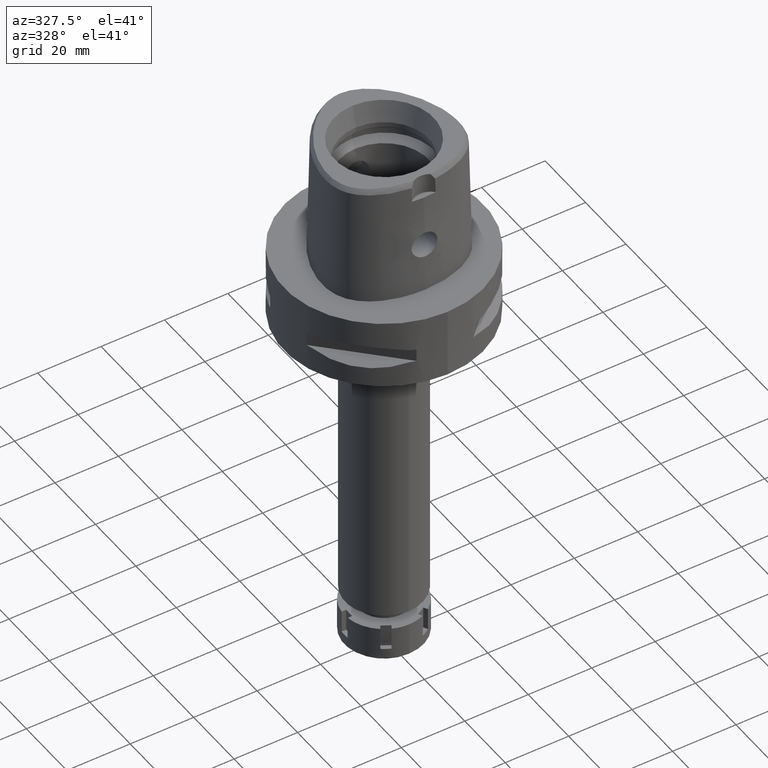
[diagram: clean part render]
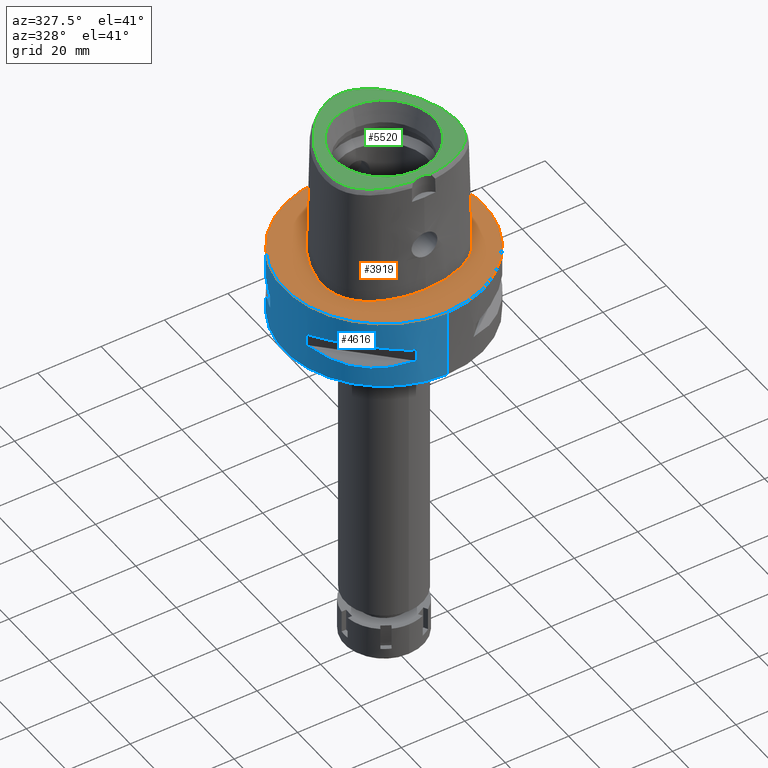
[diagram: same view with three faces highlighted in distinct colors, each labeled with its STEP entity id]
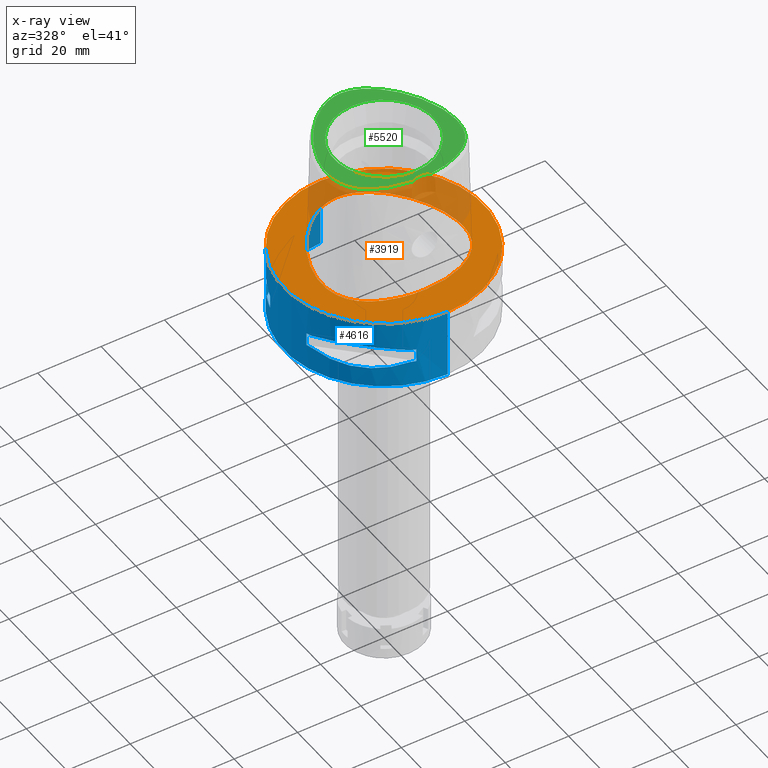
[diagram: x-ray of the same camera — body ghosted, the three highlighted faces saturated]
A machine part, auxiliary view with three faces highlighted in distinct colors.
The next image is the same camera in x-ray (body ghosted, the three faces saturated) — at least one of them is partly hidden behind the body in this view.
Their STEP definitions:

[orange] entity #3919 — the highlighted planar face has unit normal (0, 0, -1).
#27 = EDGE_CURVE ( 'NONE', #5125, #4345, #4020, .T. ) ;
#257 = CARTESIAN_POINT ( 'NONE',  ( -16.95889172186775085, -15.67838866670421361, 2.619346360361977932E-07 ) ) ;
#334 = CARTESIAN_POINT ( 'NONE',  ( 0.0000000000000000000, 31.50000000000000000, 1.065814103639999922E-14 ) ) ;
#368 = CARTESIAN_POINT ( 'NONE',  ( -0.8548392418397517956, 23.47499999345155075, 2.619351224693407064E-07 ) ) ;
#371 = CARTESIAN_POINT ( 'NONE',  ( 21.55524830731474850, -8.996025404659643954, -1.963522184688509808E-06 ) ) ;
#749 = CARTESIAN_POINT ( 'NONE',  ( 19.64947369841126346, -12.82525393515793333, -1.963522184688509808E-06 ) ) ;
#792 = FACE_OUTER_BOUND ( 'NONE', #1821, .T. ) ;
#843 = DIRECTION ( 'NONE',  ( 0.0000000000000000000, 0.0000000000000000000, -1.000000000000000000 ) ) ;
#971 = CARTESIAN_POINT ( 'NONE',  ( 0.0000000000000000000, 1.303636517692000002E-14, 1.065814103639999922E-14 ) ) ;
#1023 = DIRECTION ( 'NONE',  ( 0.0000000000000000000, 1.000000000000000000, 0.0000000000000000000 ) ) ;
#1029 = DIRECTION ( 'NONE',  ( 0.0000000000000000000, -1.000000000000000000, 0.0000000000000000000 ) ) ;
#1173 = CARTESIAN_POINT ( 'NONE',  ( 0.0000000000000000000, -31.50000000000000000, 1.065814103639999922E-14 ) ) ;
#1186 = CARTESIAN_POINT ( 'NONE',  ( -11.23259756502196005, -18.89324218131637068, 2.619346360361977932E-07 ) ) ;
#1221 = CARTESIAN_POINT ( 'NONE',  ( -7.571159431033696485, 21.31457030682647869, 2.619346360361977932E-07 ) ) ;
#1225 = CARTESIAN_POINT ( 'NONE',  ( 4.563147168621999314E-11, 23.47499999999000053, 5.514107688971999147E-14 ) ) ;
#1248 = CARTESIAN_POINT ( 'NONE',  ( -2.113823672675716914, -20.67499999345193373, 2.619346644252395981E-07 ) ) ;
#1477 = EDGE_LOOP ( 'NONE', ( #3207, #1510 ) ) ;
#1510 = ORIENTED_EDGE ( 'NONE', *, *, #4534, .F. ) ;
#1511 = DIRECTION ( 'NONE',  ( 0.0000000000000000000, 0.0000000000000000000, -1.000000000000000000 ) ) ;
#1585 = CARTESIAN_POINT ( 'NONE',  ( 4.563147168621999314E-11, 23.47499999999000053, 5.514107688971999147E-14 ) ) ;
#1591 = CARTESIAN_POINT ( 'NONE',  ( 18.56841068717591980, -14.16937991668258690, -1.963522184688509808E-06 ) ) ;
#1620 = CARTESIAN_POINT ( 'NONE',  ( 5.098437035606048440, 22.52602543639297039, -1.963522184688509808E-06 ) ) ;
#1644 = CARTESIAN_POINT ( 'NONE',  ( -10.74572890635932865, 19.17433593245471002, 2.619346360361977932E-07 ) ) ;
#1680 = FACE_BOUND ( 'NONE', #1477, .T. ) ;
#1821 = EDGE_LOOP ( 'NONE', ( #5075, #2772 ) ) ;
#1841 = CARTESIAN_POINT ( 'NONE',  ( -7.554102645100000769E-12, -20.67499999999999716, 5.806466418789999109E-14 ) ) ;
#1846 = CARTESIAN_POINT ( 'NONE',  ( 0.0000000000000000000, 1.303636517692000002E-14, 1.065814103639999922E-14 ) ) ;
#1922 = EDGE_CURVE ( 'NONE', #2988, #2382, #5254, .T. ) ;
#1987 = CARTESIAN_POINT ( 'NONE',  ( 2.113823675985067929, -20.67500004908262667, -1.963522184688509808E-06 ) ) ;
#2002 = CARTESIAN_POINT ( 'NONE',  ( -14.40795638455321814, 15.64093749575016012, 2.619351909850797799E-07 ) ) ;
#2040 = CARTESIAN_POINT ( 'NONE',  ( 0.8548392457866432759, 23.47500004909111837, -1.963522184688509808E-06 ) ) ;
#2064 = CARTESIAN_POINT ( 'NONE',  ( -20.74942740259727714, 4.657187497767338868, 2.619351909850797799E-07 ) ) ;
#2087 = CARTESIAN_POINT ( 'NONE',  ( -18.06826687956963795, 10.43171874671655885, 2.619346360361977932E-07 ) ) ;
#2090 = CARTESIAN_POINT ( 'NONE',  ( 22.24453912778353626, -4.100468749711118299, -1.963522184688509808E-06 ) ) ;
#2382 = VERTEX_POINT ( 'NONE', #1173 ) ;
#2419 = CARTESIAN_POINT ( 'NONE',  ( 11.23259758414317133, -18.89324223388144830, -1.963522184688509808E-06 ) ) ;
#2489 = CIRCLE ( 'NONE', #4103, 31.50000000000000000 ) ;
#2502 = CARTESIAN_POINT ( 'NONE',  ( 21.97832652646888008, -0.2810937414120965316, -1.963522184688509808E-06 ) ) ;
#2525 = CARTESIAN_POINT ( 'NONE',  ( -5.098437014838742343, 22.52602538452507019, 2.619346360361977932E-07 ) ) ;
#2539 = PLANE ( 'NONE',  #3303 ) ;
#2698 = DIRECTION ( 'NONE',  ( 0.0000000000000000000, 0.0000000000000000000, -1.000000000000000000 ) ) ;
#2723 = B_SPLINE_CURVE_WITH_KNOTS ( 'NONE', 3,
 ( #5419, #1987, #5008, #2419, #2916, #4239, #1591, #749, #5445, #3369, #371, #4163, #2090, #2502, #3315, #4559, #3342, #5078, #3397, #1620, #4587, #2040, #1225 ),
 .UNSPECIFIED., .F., .F.,
 ( 4, 1, 1, 1, 1, 1, 1, 1, 1, 1, 1, 1, 1, 1, 1, 1, 1, 1, 1, 1, 4 ),
 ( 0.0000000000000000000, 0.08333333333339000559, 0.1666666666667000196, 0.2083333333333000081, 0.2500000000000000000, 0.2916666666666999919, 0.3125000000000000000, 0.3333333333333000081, 0.3541666666666000163, 0.3749999999998999689, 0.4166666666666000163, 0.4583333333332000326, 0.4999999999998999689, 0.5833333333331000015, 0.6666666666664999852, 0.7499999999998000488, 0.8333333333329999704, 0.8749999999997000177, 0.9166666666664000651, 0.9583333333329999704, 1.000000000000000000 ),
 .UNSPECIFIED. ) ;
#2772 = ORIENTED_EDGE ( 'NONE', *, *, #3365, .F. ) ;
#2863 = CARTESIAN_POINT ( 'NONE',  ( 4.563147168621999314E-11, 23.47499999999000053, 5.514107688971999147E-14 ) ) ;
#2889 = CARTESIAN_POINT ( 'NONE',  ( -19.64947365333437190, -12.82525390239508845, 2.619346360361977932E-07 ) ) ;
#2904 = DIRECTION ( 'NONE',  ( 0.0000000000000000000, -1.000000000000000000, 0.0000000000000000000 ) ) ;
#2916 = CARTESIAN_POINT ( 'NONE',  ( 14.67337966856409182, -17.21410160528747824, -1.963522184688509808E-06 ) ) ;
#2941 = CARTESIAN_POINT ( 'NONE',  ( -21.97832647138169904, -0.2810937511456854665, 2.619346360361977932E-07 ) ) ;
#2988 = VERTEX_POINT ( 'NONE', #334 ) ;
#3207 = ORIENTED_EDGE ( 'NONE', *, *, #27, .F. ) ;
#3303 = AXIS2_PLACEMENT_3D ( 'NONE', #5504, #843, #2904 ) ;
#3312 = CARTESIAN_POINT ( 'NONE',  ( -21.55524825379765730, -8.996025388752761032, 2.619346360361977932E-07 ) ) ;
#3315 = CARTESIAN_POINT ( 'NONE',  ( 20.74942745523498999, 4.657187516736188471, -1.963522184688509808E-06 ) ) ;
#3342 = CARTESIAN_POINT ( 'NONE',  ( 14.40795642729540660, 15.64093753185202829, -1.963522184688509808E-06 ) ) ;
#3365 = EDGE_CURVE ( 'NONE', #2382, #2988, #2489, .T. ) ;
#3369 = CARTESIAN_POINT ( 'NONE',  ( 20.93173256703953555, -10.60431642623863446, -1.963522184688509808E-06 ) ) ;
#3394 = CARTESIAN_POINT ( 'NONE',  ( -22.24453907198324742, -4.100468750038055887, 2.619351909850797799E-07 ) ) ;
#3397 = CARTESIAN_POINT ( 'NONE',  ( 7.571159459220138999, 21.31457035499155950, -1.963522184688509808E-06 ) ) ;
#3807 = CARTESIAN_POINT ( 'NONE',  ( -20.34961797988879795, -11.74885741858964217, 2.619346360361977932E-07 ) ) ;
#3919 = ADVANCED_FACE ( 'NONE', ( #792, #1680 ), #2539, .F. ) ;
#4020 = B_SPLINE_CURVE_WITH_KNOTS ( 'NONE', 3,
 ( #2863, #368, #5466, #2525, #1221, #1644, #2002, #2087, #2064, #2941, #3394, #5100, #3312, #4160, #3807, #2889, #5439, #257, #5519, #1186, #4666, #1248, #4182 ),
 .UNSPECIFIED., .F., .F.,
 ( 4, 1, 1, 1, 1, 1, 1, 1, 1, 1, 1, 1, 1, 1, 1, 1, 1, 1, 1, 1, 4 ),
 ( 0.0000000000000000000, 0.04166666666736999758, 0.08333333333399001175, 0.1250000000005999923, 0.1666666666673000119, 0.2500000000004999889, 0.3333333333337000215, 0.4166666666670000296, 0.5000000000002999823, 0.5416666666668999985, 0.5833333333335000148, 0.6250000000001000311, 0.6458333333333999837, 0.6666666666667999674, 0.6875000000001000311, 0.7083333333333000637, 0.7500000000000000000, 0.7916666666667000474, 0.8333333333332000326, 0.9166666666664999852, 1.000000000000000000 ),
 .UNSPECIFIED. ) ;
#4103 = AXIS2_PLACEMENT_3D ( 'NONE', #1846, #1511, #1029 ) ;
#4160 = CARTESIAN_POINT ( 'NONE',  ( -20.93173251612003938, -10.60431640359096761, 2.619346360361977932E-07 ) ) ;
#4163 = CARTESIAN_POINT ( 'NONE',  ( 22.05732879202109231, -6.847636725762455967, -1.963522184688509808E-06 ) ) ;
#4182 = CARTESIAN_POINT ( 'NONE',  ( -7.554102645100000769E-12, -20.67499999999999716, 5.806466418789999109E-14 ) ) ;
#4239 = CARTESIAN_POINT ( 'NONE',  ( 16.95889175640957802, -15.67838871063158201, -1.963522184688509808E-06 ) ) ;
#4345 = VERTEX_POINT ( 'NONE', #1841 ) ;
#4534 = EDGE_CURVE ( 'NONE', #4345, #5125, #2723, .T. ) ;
#4559 = CARTESIAN_POINT ( 'NONE',  ( 18.06826692799056744, 10.43171877467559128, -1.963522184688509808E-06 ) ) ;
#4587 = CARTESIAN_POINT ( 'NONE',  ( 2.564517737045855839, 23.29328129833609751, -1.963522184688509808E-06 ) ) ;
#4666 = CARTESIAN_POINT ( 'NONE',  ( -6.341471018048058461, -20.29812499352228983, 2.619351909850797799E-07 ) ) ;
#4898 = AXIS2_PLACEMENT_3D ( 'NONE', #971, #2698, #1023 ) ;
#5008 = CARTESIAN_POINT ( 'NONE',  ( 6.341471027934107774, -20.29812504859152966, -1.963522184688509808E-06 ) ) ;
#5075 = ORIENTED_EDGE ( 'NONE', *, *, #1922, .F. ) ;
#5078 = CARTESIAN_POINT ( 'NONE',  ( 10.74572894232482057, 19.17433597529923972, -1.963522184688509808E-06 ) ) ;
#5100 = CARTESIAN_POINT ( 'NONE',  ( -22.05732873671569649, -6.847636717813841756, 2.619346360361977932E-07 ) ) ;
#5125 = VERTEX_POINT ( 'NONE', #1585 ) ;
#5254 = CIRCLE ( 'NONE', #4898, 31.50000000000000000 ) ;
#5419 = CARTESIAN_POINT ( 'NONE',  ( -7.554102645100000769E-12, -20.67499999999999716, 5.806466418789999109E-14 ) ) ;
#5439 = CARTESIAN_POINT ( 'NONE',  ( -18.56841064664882524, -14.16937987829893331, 2.619346360361977932E-07 ) ) ;
#5445 = CARTESIAN_POINT ( 'NONE',  ( 20.34961802815782406, -11.74885744646087282, -1.963522184688509808E-06 ) ) ;
#5466 = CARTESIAN_POINT ( 'NONE',  ( -2.564517725611348720, 23.29328124354946183, 2.619346360361977932E-07 ) ) ;
#5504 = CARTESIAN_POINT ( 'NONE',  ( 0.0000000000000000000, 1.224646799146999965E-14, 0.0000000000000000000 ) ) ;
#5519 = CARTESIAN_POINT ( 'NONE',  ( -14.67337964094917169, -17.21410155678861997, 2.619346360361977932E-07 ) ) ;

[blue] entity #4616 — the highlighted cylindrical surface (partial cylindrical patch) has radius 31.5 mm, axis along (0, 0, -1).
#14 = VERTEX_POINT ( 'NONE', #1164 ) ;
#38 = ORIENTED_EDGE ( 'NONE', *, *, #3365, .T. ) ;
#41 = AXIS2_PLACEMENT_3D ( 'NONE', #2274, #3129, #496 ) ;
#51 = CIRCLE ( 'NONE', #2298, 31.50000000000001776 ) ;
#199 = ORIENTED_EDGE ( 'NONE', *, *, #2994, .T. ) ;
#233 = B_SPLINE_CURVE_WITH_KNOTS ( 'NONE', 3,
 ( #1857, #556, #2686, #1349, #1405, #445, #3554, #3474, #5265, #3107, #3993, #2630, #2254, #3528, #505, #3968, #2602, #470, #4339, #4315, #2169, #3914, #1324, #4844 ),
 .UNSPECIFIED., .F., .F.,
 ( 4, 1, 1, 1, 1, 1, 2, 2, 2, 1, 1, 1, 1, 1, 2, 2, 4 ),
 ( 0.0000000000000000000, 0.1250000000000055511, 0.1875000000000083267, 0.2187500000000097977, 0.2343750000000106304, 0.2421875000000108247, 0.2460937500000108524, 0.2500000000000108802, 0.5000000000000087708, 0.6250000000000075495, 0.6875000000000071054, 0.7187500000000067724, 0.7343750000000066613, 0.7421875000000065503, 0.7460937500000062172, 0.7500000000000059952, 1.000000000000000000 ),
 .UNSPECIFIED. ) ;
#241 = CARTESIAN_POINT ( 'NONE',  ( 0.0000000000000000000, 1.303636517692000002E-14, -14.05000000000000071 ) ) ;
#272 = DIRECTION ( 'NONE',  ( 0.0000000000000000000, 0.0000000000000000000, -1.000000000000000000 ) ) ;
#282 = CARTESIAN_POINT ( 'NONE',  ( -20.64154884328072370, 23.90617837147178193, -8.160627831309673397 ) ) ;
#290 = ORIENTED_EDGE ( 'NONE', *, *, #5357, .T. ) ;
#322 = CARTESIAN_POINT ( 'NONE',  ( -8.981198972017999438, 30.19251670572000279, -9.950000000000001066 ) ) ;
#334 = CARTESIAN_POINT ( 'NONE',  ( 0.0000000000000000000, 31.50000000000000000, 1.065814103639999922E-14 ) ) ;
#348 = DIRECTION ( 'NONE',  ( 0.0000000000000000000, -1.000000000000000000, 0.0000000000000000000 ) ) ;
#351 = CARTESIAN_POINT ( 'NONE',  ( -23.08532645888017854, 21.46242677077873751, -15.83938991065184076 ) ) ;
#374 = CARTESIAN_POINT ( 'NONE',  ( -29.71690375017999841, 10.44775724750000023, -14.05000000000000071 ) ) ;
#400 = VECTOR ( 'NONE', #426, 1000.000000000000000 ) ;
#426 = DIRECTION ( 'NONE',  ( 0.0000000000000000000, 0.0000000000000000000, 1.000000000000000000 ) ) ;
#445 = CARTESIAN_POINT ( 'NONE',  ( -26.84474411198783628, -16.48208282228858224, -15.34094883777952667 ) ) ;
#461 = DIRECTION ( 'NONE',  ( 0.0000000000000000000, 0.0000000000000000000, 1.000000000000000000 ) ) ;
#470 = CARTESIAN_POINT ( 'NONE',  ( -17.14106442934810204, -26.42800887047570058, -15.43984550238532982 ) ) ;
#482 = CARTESIAN_POINT ( 'NONE',  ( -25.37277178159835955, -18.81455742174598456, -8.309746333092055792 ) ) ;
#496 = DIRECTION ( 'NONE',  ( -0.9584925938322735872, -0.2851174276831918153, 0.0000000000000000000 ) ) ;
#505 = CARTESIAN_POINT ( 'NONE',  ( -18.59229662065495958, -25.43927894891979946, -15.62866126334684580 ) ) ;
#512 = CARTESIAN_POINT ( 'NONE',  ( -29.71690375017999841, -10.44775724750000023, -9.949999999998999201 ) ) ;
#516 = DIRECTION ( 'NONE',  ( -0.3316748332540863653, 0.9433937698468619626, 0.0000000000000000000 ) ) ;
#534 = VERTEX_POINT ( 'NONE', #2543 ) ;
#543 = CARTESIAN_POINT ( 'NONE',  ( -30.19251670572000279, -8.981198972017999438, -14.05000000000000071 ) ) ;
#556 = CARTESIAN_POINT ( 'NONE',  ( -29.31542262584746794, -11.58970337494326941, -14.35229357166913999 ) ) ;
#567 = VERTEX_POINT ( 'NONE', #1766 ) ;
#647 = EDGE_CURVE ( 'NONE', #3327, #3419, #4347, .T. ) ;
#668 = VERTEX_POINT ( 'NONE', #2482 ) ;
#676 = AXIS2_PLACEMENT_3D ( 'NONE', #3326, #1175, #5059 ) ;
#725 = EDGE_CURVE ( 'NONE', #5213, #1923, #2915, .T. ) ;
#776 = AXIS2_PLACEMENT_3D ( 'NONE', #5102, #1252, #348 ) ;
#788 = EDGE_CURVE ( 'NONE', #3327, #2240, #1729, .T. ) ;
#790 = DIRECTION ( 'NONE',  ( -0.9584925938322735872, 0.2851174276831918153, 0.0000000000000000000 ) ) ;
#808 = ORIENTED_EDGE ( 'NONE', *, *, #2056, .T. ) ;
#809 = FACE_BOUND ( 'NONE', #4158, .T. ) ;
#816 = CARTESIAN_POINT ( 'NONE',  ( 0.0000000000000000000, -31.50000000000000000, 0.0000000000000000000 ) ) ;
#834 = CARTESIAN_POINT ( 'NONE',  ( -26.48642424310458665, 17.05047092244234008, -15.42670883407647509 ) ) ;
#855 = LINE ( 'NONE', #2585, #400 ) ;
#871 = EDGE_CURVE ( 'NONE', #2382, #1919, #2622, .T. ) ;
#877 = CARTESIAN_POINT ( 'NONE',  ( -10.44775724750000023, 29.71690375017999841, -9.949999999998999201 ) ) ;
#889 = CARTESIAN_POINT ( 'NONE',  ( -16.86571563436579169, 26.60451452154777030, -15.39949295785988426 ) ) ;
#897 = DIRECTION ( 'NONE',  ( 0.0000000000000000000, 0.0000000000000000000, 1.000000000000000000 ) ) ;
#914 = CARTESIAN_POINT ( 'NONE',  ( 0.0000000000000000000, 1.303636517692000002E-14, -14.05000000000000071 ) ) ;
#939 = CARTESIAN_POINT ( 'NONE',  ( -14.84430321566181910, -27.88210502990660444, -8.906184732002364157 ) ) ;
#966 = ORIENTED_EDGE ( 'NONE', *, *, #725, .T. ) ;
#1021 = ORIENTED_EDGE ( 'NONE', *, *, #1618, .F. ) ;
#1029 = DIRECTION ( 'NONE',  ( 0.0000000000000000000, -1.000000000000000000, 0.0000000000000000000 ) ) ;
#1040 = CARTESIAN_POINT ( 'NONE',  ( -10.44775724750000023, -29.71690375017999841, -9.949999999998999201 ) ) ;
#1057 = B_SPLINE_CURVE_WITH_KNOTS ( 'NONE', 3,
 ( #1554, #3256, #2523, #5021, #282, #4179, #5437, #3336, #4549, #3281 ),
 .UNSPECIFIED., .F., .F.,
 ( 4, 2, 2, 2, 4 ),
 ( 0.0000000000000000000, 0.2500000000000000000, 0.5000000000000000000, 0.7500000000000000000, 1.000000000000000000 ),
 .UNSPECIFIED. ) ;
#1100 = DIRECTION ( 'NONE',  ( 0.0000000000000000000, 1.000000000000000000, 0.0000000000000000000 ) ) ;
#1137 = CARTESIAN_POINT ( 'NONE',  ( -29.71690375017999841, -10.44775724750000023, -14.05000000000000071 ) ) ;
#1164 = CARTESIAN_POINT ( 'NONE',  ( -10.44775724750000023, 29.71690375017999841, -14.05000000000000071 ) ) ;
#1173 = CARTESIAN_POINT ( 'NONE',  ( 0.0000000000000000000, -31.50000000000000000, 1.065814103639999922E-14 ) ) ;
#1175 = DIRECTION ( 'NONE',  ( 0.0000000000000000000, 0.0000000000000000000, 1.000000000000000000 ) ) ;
#1190 = FACE_BOUND ( 'NONE', #4772, .T. ) ;
#1195 = CARTESIAN_POINT ( 'NONE',  ( -26.42800887047508240, 17.14106442934706820, -15.43984550238465836 ) ) ;
#1198 = VECTOR ( 'NONE', #461, 1000.000000000000000 ) ;
#1224 = ORIENTED_EDGE ( 'NONE', *, *, #2548, .F. ) ;
#1228 = CARTESIAN_POINT ( 'NONE',  ( -24.23018836745279714, 20.18579225685798306, -15.78559396978850415 ) ) ;
#1252 = DIRECTION ( 'NONE',  ( 0.0000000000000000000, 0.0000000000000000000, -1.000000000000000000 ) ) ;
#1273 = ORIENTED_EDGE ( 'NONE', *, *, #2268, .F. ) ;
#1304 = ORIENTED_EDGE ( 'NONE', *, *, #4813, .T. ) ;
#1307 = CARTESIAN_POINT ( 'NONE',  ( -11.58970337493613378, 29.31542262584994418, -14.35229357166721265 ) ) ;
#1324 = CARTESIAN_POINT ( 'NONE',  ( -12.73197616784617381, -28.91382665370159799, -14.65467361752943809 ) ) ;
#1349 = CARTESIAN_POINT ( 'NONE',  ( -27.64634172018421410, -15.11986997309601577, -15.11207862403482238 ) ) ;
#1385 = ORIENTED_EDGE ( 'NONE', *, *, #1771, .T. ) ;
#1399 = AXIS2_PLACEMENT_3D ( 'NONE', #3418, #5517, #1666 ) ;
#1405 = CARTESIAN_POINT ( 'NONE',  ( -27.11872488589304453, -16.03138450078185429, -15.26880420107623237 ) ) ;
#1434 = DIRECTION ( 'NONE',  ( 0.0000000000000000000, 0.0000000000000000000, -1.000000000000000000 ) ) ;
#1441 = B_SPLINE_CURVE_WITH_KNOTS ( 'NONE', 3,
 ( #512, #3535, #2237, #482, #3032, #4799, #3840, #939, #5132, #1781 ),
 .UNSPECIFIED., .F., .F.,
 ( 4, 2, 2, 2, 4 ),
 ( 0.0000000000000000000, 0.2500000000000000000, 0.5000000000000000000, 0.7500000000000000000, 1.000000000000000000 ),
 .UNSPECIFIED. ) ;
#1479 = CIRCLE ( 'NONE', #41, 31.50000000000001776 ) ;
#1503 = ORIENTED_EDGE ( 'NONE', *, *, #647, .T. ) ;
#1507 = VERTEX_POINT ( 'NONE', #5558 ) ;
#1511 = DIRECTION ( 'NONE',  ( 0.0000000000000000000, 0.0000000000000000000, -1.000000000000000000 ) ) ;
#1541 = CARTESIAN_POINT ( 'NONE',  ( -8.981198972019999616, -30.19251670572000279, -14.05000000000000071 ) ) ;
#1554 = CARTESIAN_POINT ( 'NONE',  ( -10.44775724750000023, 29.71690375017999841, -9.949999999998999201 ) ) ;
#1576 = AXIS2_PLACEMENT_3D ( 'NONE', #4231, #2081, #1100 ) ;
#1593 = VERTEX_POINT ( 'NONE', #4218 ) ;
#1618 = EDGE_CURVE ( 'NONE', #14, #3419, #3309, .T. ) ;
#1629 = VERTEX_POINT ( 'NONE', #2977 ) ;
#1666 = DIRECTION ( 'NONE',  ( -0.9433937698468619626, 0.3316748332540863653, 0.0000000000000000000 ) ) ;
#1671 = CYLINDRICAL_SURFACE ( 'NONE', #776, 31.50000000000000000 ) ;
#1673 = CARTESIAN_POINT ( 'NONE',  ( -15.11986997308662595, 27.64634172018752523, -15.11207862403231239 ) ) ;
#1705 = CARTESIAN_POINT ( 'NONE',  ( 0.0000000000000000000, 1.303636517692000002E-14, -9.950000000000001066 ) ) ;
#1729 = LINE ( 'NONE', #2648, #1198 ) ;
#1734 = AXIS2_PLACEMENT_3D ( 'NONE', #241, #272, #790 ) ;
#1755 = CARTESIAN_POINT ( 'NONE',  ( -16.70616724745637072, 26.70521063584585164, -15.37546661817639126 ) ) ;
#1766 = CARTESIAN_POINT ( 'NONE',  ( 0.0000000000000000000, 31.50000000000000000, -22.00000000000000000 ) ) ;
#1770 = ORIENTED_EDGE ( 'NONE', *, *, #3784, .F. ) ;
#1771 = EDGE_CURVE ( 'NONE', #14, #1629, #2288, .T. ) ;
#1781 = CARTESIAN_POINT ( 'NONE',  ( -10.44775724750000023, -29.71690375017999841, -9.949999999998999201 ) ) ;
#1812 = ORIENTED_EDGE ( 'NONE', *, *, #4611, .T. ) ;
#1832 = ORIENTED_EDGE ( 'NONE', *, *, #5420, .T. ) ;
#1846 = CARTESIAN_POINT ( 'NONE',  ( 0.0000000000000000000, 1.303636517692000002E-14, 1.065814103639999922E-14 ) ) ;
#1857 = CARTESIAN_POINT ( 'NONE',  ( -29.71690375017999841, -10.44775724750000023, -14.05000000000000071 ) ) ;
#1909 = VECTOR ( 'NONE', #4758, 1000.000000000000000 ) ;
#1919 = VERTEX_POINT ( 'NONE', #3517 ) ;
#1923 = VERTEX_POINT ( 'NONE', #543 ) ;
#1931 = VECTOR ( 'NONE', #1434, 1000.000000000000000 ) ;
#1989 = DIRECTION ( 'NONE',  ( -0.9433937698468619626, -0.3316748332540863653, 0.0000000000000000000 ) ) ;
#2045 = LINE ( 'NONE', #322, #4270 ) ;
#2056 = EDGE_CURVE ( 'NONE', #3757, #668, #1479, .T. ) ;
#2070 = CARTESIAN_POINT ( 'NONE',  ( -26.29071741523646111, 17.35163608579689409, -15.46976201925398087 ) ) ;
#2081 = DIRECTION ( 'NONE',  ( 0.0000000000000000000, 0.0000000000000000000, 1.000000000000000000 ) ) ;
#2094 = CARTESIAN_POINT ( 'NONE',  ( -20.65093790435807364, 23.89673728056094859, -15.83935804902020550 ) ) ;
#2109 = CIRCLE ( 'NONE', #1576, 31.50000000000000000 ) ;
#2154 = CARTESIAN_POINT ( 'NONE',  ( -10.44775724750000023, 29.71690375017999841, -14.05000000000000071 ) ) ;
#2169 = CARTESIAN_POINT ( 'NONE',  ( -16.96123479564984748, -26.54368690921626950, -15.41365572341332424 ) ) ;
#2237 = CARTESIAN_POINT ( 'NONE',  ( -27.88214534463898175, -14.84422749211551640, -8.906206096462614852 ) ) ;
#2240 = VERTEX_POINT ( 'NONE', #3245 ) ;
#2254 = CARTESIAN_POINT ( 'NONE',  ( -21.46242677078364025, -23.08532645888299939, -15.83938991065501867 ) ) ;
#2268 = EDGE_CURVE ( 'NONE', #1507, #1629, #2045, .T. ) ;
#2274 = CARTESIAN_POINT ( 'NONE',  ( 0.0000000000000000000, 1.303636517692000002E-14, -9.950000000000001066 ) ) ;
#2288 = CIRCLE ( 'NONE', #4806, 31.50000000000000711 ) ;
#2298 = AXIS2_PLACEMENT_3D ( 'NONE', #4186, #5470, #5051 ) ;
#2314 = CARTESIAN_POINT ( 'NONE',  ( -30.19251670572000279, -8.981198972017999438, -9.950000000000001066 ) ) ;
#2325 = EDGE_LOOP ( 'NONE', ( #199, #3154, #38, #1832 ) ) ;
#2382 = VERTEX_POINT ( 'NONE', #1173 ) ;
#2482 = CARTESIAN_POINT ( 'NONE',  ( -29.71690375017999841, -10.44775724750000023, -9.949999999998999201 ) ) ;
#2489 = CIRCLE ( 'NONE', #4103, 31.50000000000000000 ) ;
#2505 = CARTESIAN_POINT ( 'NONE',  ( -28.91382665368626093, 12.73197616788979047, -14.65467361754097197 ) ) ;
#2511 = DIRECTION ( 'NONE',  ( 0.0000000000000000000, 0.0000000000000000000, -1.000000000000000000 ) ) ;
#2523 = CARTESIAN_POINT ( 'NONE',  ( -14.84422749199032943, 27.88214534470565198, -8.906206096497943037 ) ) ;
#2543 = CARTESIAN_POINT ( 'NONE',  ( -29.71690375017999841, 10.44775724750000023, -9.949999999998999201 ) ) ;
#2548 = EDGE_CURVE ( 'NONE', #3757, #1923, #2710, .T. ) ;
#2557 = CARTESIAN_POINT ( 'NONE',  ( -26.01217882834653139, 17.76952662671834915, -15.52665221626015501 ) ) ;
#2585 = CARTESIAN_POINT ( 'NONE',  ( -8.981198972017999438, -30.19251670572000279, -14.05000000000000071 ) ) ;
#2602 = CARTESIAN_POINT ( 'NONE',  ( -17.35163608579889072, -26.29071741523761929, -15.46976201925527761 ) ) ;
#2616 = CARTESIAN_POINT ( 'NONE',  ( -18.86897208073744991, 25.32725744467937545, -15.69588095933747240 ) ) ;
#2622 = LINE ( 'NONE', #816, #1909 ) ;
#2630 = CARTESIAN_POINT ( 'NONE',  ( -23.89673728055121416, -20.65093790435243193, -15.83935804901394739 ) ) ;
#2648 = CARTESIAN_POINT ( 'NONE',  ( -30.19251670572000279, 8.981198972017999438, -14.05000000000000071 ) ) ;
#2686 = CARTESIAN_POINT ( 'NONE',  ( -28.62019653468943048, -13.25636937903484203, -14.74888225541266884 ) ) ;
#2710 = LINE ( 'NONE', #2314, #1931 ) ;
#2719 = VERTEX_POINT ( 'NONE', #1040 ) ;
#2915 = CIRCLE ( 'NONE', #3808, 31.50000000000000711 ) ;
#2920 = CARTESIAN_POINT ( 'NONE',  ( -26.52527364208584615, 16.98999780422065342, -15.41788098766309467 ) ) ;
#2969 = DIRECTION ( 'NONE',  ( 0.0000000000000000000, 0.0000000000000000000, -1.000000000000000000 ) ) ;
#2977 = CARTESIAN_POINT ( 'NONE',  ( -8.981198972017999438, 30.19251670572000279, -14.05000000000000071 ) ) ;
#2988 = VERTEX_POINT ( 'NONE', #334 ) ;
#2994 = EDGE_CURVE ( 'NONE', #567, #1919, #2109, .T. ) ;
#3032 = CARTESIAN_POINT ( 'NONE',  ( -23.90617837153842729, -20.64154884321405703, -8.160627831286120681 ) ) ;
#3075 = ORIENTED_EDGE ( 'NONE', *, *, #4472, .T. ) ;
#3107 = CARTESIAN_POINT ( 'NONE',  ( -26.58330558444411906, -16.89910283486596754, -15.40446471307235754 ) ) ;
#3129 = DIRECTION ( 'NONE',  ( 0.0000000000000000000, 0.0000000000000000000, 1.000000000000000000 ) ) ;
#3154 = ORIENTED_EDGE ( 'NONE', *, *, #871, .F. ) ;
#3216 = AXIS2_PLACEMENT_3D ( 'NONE', #1705, #897, #5176 ) ;
#3245 = CARTESIAN_POINT ( 'NONE',  ( -30.19251670572000279, 8.981198972017999438, -9.950000000000001066 ) ) ;
#3256 = CARTESIAN_POINT ( 'NONE',  ( -12.70092055730904868, 28.92474506844683901, -9.353547358226721897 ) ) ;
#3281 = CARTESIAN_POINT ( 'NONE',  ( -29.71690375017999841, 10.44775724750000023, -9.949999999998999201 ) ) ;
#3309 = B_SPLINE_CURVE_WITH_KNOTS ( 'NONE', 3,
 ( #2154, #1307, #5136, #1673, #5164, #4751, #1755, #5496, #889, #3488, #2616, #2094, #351, #1228, #3897, #2557, #2070, #1195, #834, #2920, #5106, #3871, #2505, #374 ),
 .UNSPECIFIED., .F., .F.,
 ( 4, 1, 1, 1, 1, 1, 2, 2, 2, 1, 1, 1, 1, 1, 2, 2, 4 ),
 ( 0.0000000000000000000, 0.1249999999999950040, 0.1874999999999924505, 0.2187499999999911737, 0.2343749999999902855, 0.2421874999999899802, 0.2460937499999900080, 0.2499999999999900080, 0.4999999999999917843, 0.6249999999999925615, 0.6874999999999925615, 0.7187499999999924505, 0.7343749999999926725, 0.7421874999999927836, 0.7460937499999928946, 0.7499999999999931166, 1.000000000000000000 ),
 .UNSPECIFIED. ) ;
#3326 = CARTESIAN_POINT ( 'NONE',  ( 0.0000000000000000000, 1.303636517692000002E-14, -9.950000000000001066 ) ) ;
#3327 = VERTEX_POINT ( 'NONE', #4527 ) ;
#3336 = CARTESIAN_POINT ( 'NONE',  ( -27.88210502983995553, 14.84430321578704515, -8.906184731967034196 ) ) ;
#3365 = EDGE_CURVE ( 'NONE', #2382, #2988, #2489, .T. ) ;
#3386 = VECTOR ( 'NONE', #2969, 1000.000000000000000 ) ;
#3412 = ORIENTED_EDGE ( 'NONE', *, *, #5199, .T. ) ;
#3418 = CARTESIAN_POINT ( 'NONE',  ( 0.0000000000000000000, 1.303636517692000002E-14, -9.950000000000001066 ) ) ;
#3419 = VERTEX_POINT ( 'NONE', #4863 ) ;
#3474 = CARTESIAN_POINT ( 'NONE',  ( -26.64486562695783789, -16.80193241490531975, -15.38992683735687272 ) ) ;
#3488 = CARTESIAN_POINT ( 'NONE',  ( -16.89910283486545950, 26.58330558444438907, -15.40446471307224030 ) ) ;
#3517 = CARTESIAN_POINT ( 'NONE',  ( 0.0000000000000000000, -31.50000000000000000, -22.00000000000000000 ) ) ;
#3528 = CARTESIAN_POINT ( 'NONE',  ( -20.18579225686653444, -24.23018836745773541, -15.78559396979401974 ) ) ;
#3535 = CARTESIAN_POINT ( 'NONE',  ( -28.92474506841556092, -12.70092055739798376, -9.353547358203169182 ) ) ;
#3554 = CARTESIAN_POINT ( 'NONE',  ( -26.70521063584532229, -16.70616724745790549, -15.37546661817682292 ) ) ;
#3757 = VERTEX_POINT ( 'NONE', #4739 ) ;
#3784 = EDGE_CURVE ( 'NONE', #5213, #1593, #233, .T. ) ;
#3808 = AXIS2_PLACEMENT_3D ( 'NONE', #4569, #2511, #1989 ) ;
#3829 = CIRCLE ( 'NONE', #1399, 31.50000000000000711 ) ;
#3840 = CARTESIAN_POINT ( 'NONE',  ( -18.81462633020657194, -25.37272068407227010, -8.309724968631808650 ) ) ;
#3871 = CARTESIAN_POINT ( 'NONE',  ( -27.86285265926284893, 14.89252659058025685, -15.10765629752004813 ) ) ;
#3895 = VERTEX_POINT ( 'NONE', #4678 ) ;
#3897 = CARTESIAN_POINT ( 'NONE',  ( -25.43927894891607622, 18.59229662064853983, -15.62866126334269623 ) ) ;
#3914 = CARTESIAN_POINT ( 'NONE',  ( -14.89252659053665440, -27.86285265927818600, -15.10765629750852135 ) ) ;
#3968 = CARTESIAN_POINT ( 'NONE',  ( -17.76952662672209371, -26.01217882834868433, -15.52665221626257264 ) ) ;
#3982 = EDGE_CURVE ( 'NONE', #1507, #5328, #4899, .T. ) ;
#3993 = CARTESIAN_POINT ( 'NONE',  ( -25.32725744469575702, -18.86897208070564247, -15.69588095933118943 ) ) ;
#4041 = ORIENTED_EDGE ( 'NONE', *, *, #788, .F. ) ;
#4078 = VERTEX_POINT ( 'NONE', #1541 ) ;
#4103 = AXIS2_PLACEMENT_3D ( 'NONE', #1846, #1511, #1029 ) ;
#4158 = EDGE_LOOP ( 'NONE', ( #3075, #4801, #1812, #1770, #966, #1224, #808, #1304 ) ) ;
#4179 = CARTESIAN_POINT ( 'NONE',  ( -23.90617837147178193, 20.64154884328073081, -8.160613588465007950 ) ) ;
#4186 = CARTESIAN_POINT ( 'NONE',  ( 0.0000000000000000000, 1.303636517692000002E-14, -14.05000000000000071 ) ) ;
#4194 = CIRCLE ( 'NONE', #676, 31.50000000000000711 ) ;
#4218 = CARTESIAN_POINT ( 'NONE',  ( -10.44775724750000023, -29.71690375017999841, -14.05000000000000071 ) ) ;
#4231 = CARTESIAN_POINT ( 'NONE',  ( 0.0000000000000000000, 1.303636517692000002E-14, -22.00000000000000000 ) ) ;
#4270 = VECTOR ( 'NONE', #4976, 1000.000000000000000 ) ;
#4315 = CARTESIAN_POINT ( 'NONE',  ( -16.98999780422095540, -26.52527364208602734, -15.41788098766330783 ) ) ;
#4339 = CARTESIAN_POINT ( 'NONE',  ( -17.05047092244293694, -26.48642424310493837, -15.42670883407686588 ) ) ;
#4347 = CIRCLE ( 'NONE', #1734, 31.50000000000001776 ) ;
#4472 = EDGE_CURVE ( 'NONE', #2719, #3895, #4194, .T. ) ;
#4527 = CARTESIAN_POINT ( 'NONE',  ( -30.19251670572000279, 8.981198972019999616, -14.05000000000000071 ) ) ;
#4549 = CARTESIAN_POINT ( 'NONE',  ( -28.92472615205409170, 12.70097436183467110, -9.353533115206117188 ) ) ;
#4569 = CARTESIAN_POINT ( 'NONE',  ( 0.0000000000000000000, 1.303636517692000002E-14, -14.05000000000000071 ) ) ;
#4611 = EDGE_CURVE ( 'NONE', #4078, #1593, #51, .T. ) ;
#4616 = ADVANCED_FACE ( 'NONE', ( #5524, #1190, #809 ), #1671, .T. ) ;
#4678 = CARTESIAN_POINT ( 'NONE',  ( -8.981198972017999438, -30.19251670572000279, -9.950000000000001066 ) ) ;
#4739 = CARTESIAN_POINT ( 'NONE',  ( -30.19251670572000279, -8.981198972019999616, -9.950000000000001066 ) ) ;
#4751 = CARTESIAN_POINT ( 'NONE',  ( -16.48208282228564769, 26.84474411198887012, -15.34094883777873619 ) ) ;
#4758 = DIRECTION ( 'NONE',  ( 0.0000000000000000000, 0.0000000000000000000, -1.000000000000000000 ) ) ;
#4772 = EDGE_LOOP ( 'NONE', ( #290, #4041, #1503, #1021, #1385, #1273, #5280, #3412 ) ) ;
#4787 = EDGE_CURVE ( 'NONE', #4078, #3895, #855, .T. ) ;
#4793 = CARTESIAN_POINT ( 'NONE',  ( 0.0000000000000000000, 31.50000000000000000, 0.0000000000000000000 ) ) ;
#4799 = CARTESIAN_POINT ( 'NONE',  ( -20.64154884321404637, -23.90617837153842729, -8.160613588488562442 ) ) ;
#4801 = ORIENTED_EDGE ( 'NONE', *, *, #4787, .F. ) ;
#4803 = DIRECTION ( 'NONE',  ( 0.0000000000000000000, 0.0000000000000000000, -1.000000000000000000 ) ) ;
#4806 = AXIS2_PLACEMENT_3D ( 'NONE', #914, #4803, #516 ) ;
#4813 = EDGE_CURVE ( 'NONE', #668, #2719, #1441, .T. ) ;
#4844 = CARTESIAN_POINT ( 'NONE',  ( -10.44775724750000023, -29.71690375017999841, -14.05000000000000071 ) ) ;
#4863 = CARTESIAN_POINT ( 'NONE',  ( -29.71690375017999841, 10.44775724750000023, -14.05000000000000071 ) ) ;
#4899 = CIRCLE ( 'NONE', #3216, 31.50000000000001776 ) ;
#4976 = DIRECTION ( 'NONE',  ( 0.0000000000000000000, 0.0000000000000000000, -1.000000000000000000 ) ) ;
#5021 = CARTESIAN_POINT ( 'NONE',  ( -18.81455742163205613, 25.37277178168287151, -8.309746333127383977 ) ) ;
#5051 = DIRECTION ( 'NONE',  ( -0.2851174276831918153, -0.9584925938322735872, 0.0000000000000000000 ) ) ;
#5059 = DIRECTION ( 'NONE',  ( -0.3316748332540863653, -0.9433937698468619626, 0.0000000000000000000 ) ) ;
#5102 = CARTESIAN_POINT ( 'NONE',  ( 0.0000000000000000000, 1.303636517692000002E-14, 6.450000000000000178 ) ) ;
#5106 = CARTESIAN_POINT ( 'NONE',  ( -26.54368690921649687, 16.96123479564916892, -15.41365572341313239 ) ) ;
#5132 = CARTESIAN_POINT ( 'NONE',  ( -12.70097436174568983, -28.92472615208535558, -9.353533115229668127 ) ) ;
#5136 = CARTESIAN_POINT ( 'NONE',  ( -13.25636937902232404, 28.62019653469382163, -14.74888225540932751 ) ) ;
#5164 = CARTESIAN_POINT ( 'NONE',  ( -16.03138450077636534, 27.11872488589498786, -15.26880420107476333 ) ) ;
#5176 = DIRECTION ( 'NONE',  ( -0.2851174276831918153, 0.9584925938322735872, 0.0000000000000000000 ) ) ;
#5199 = EDGE_CURVE ( 'NONE', #5328, #534, #1057, .T. ) ;
#5213 = VERTEX_POINT ( 'NONE', #1137 ) ;
#5265 = CARTESIAN_POINT ( 'NONE',  ( -26.60451452154760332, -16.86571563436626064, -15.39949295786003347 ) ) ;
#5280 = ORIENTED_EDGE ( 'NONE', *, *, #3982, .T. ) ;
#5328 = VERTEX_POINT ( 'NONE', #877 ) ;
#5357 = EDGE_CURVE ( 'NONE', #534, #2240, #3829, .T. ) ;
#5420 = EDGE_CURVE ( 'NONE', #2988, #567, #5548, .T. ) ;
#5437 = CARTESIAN_POINT ( 'NONE',  ( -25.37272068398780434, 18.81462633032050746, -8.309724968596476913 ) ) ;
#5470 = DIRECTION ( 'NONE',  ( 0.0000000000000000000, 0.0000000000000000000, -1.000000000000000000 ) ) ;
#5496 = CARTESIAN_POINT ( 'NONE',  ( -16.80193241490443157, 26.64486562695815053, -15.38992683735661515 ) ) ;
#5517 = DIRECTION ( 'NONE',  ( 0.0000000000000000000, 0.0000000000000000000, 1.000000000000000000 ) ) ;
#5524 = FACE_OUTER_BOUND ( 'NONE', #2325, .T. ) ;
#5548 = LINE ( 'NONE', #4793, #3386 ) ;
#5558 = CARTESIAN_POINT ( 'NONE',  ( -8.981198972019999616, 30.19251670572000279, -9.950000000000001066 ) ) ;

[green] entity #5520 — the highlighted planar face has unit normal (0, 0, 1).
#17 = CARTESIAN_POINT ( 'NONE',  ( -2.017025177696549765, 21.50280829367693869, 37.99999999999452172 ) ) ;
#23 = CARTESIAN_POINT ( 'NONE',  ( 7.655962789344129327, 19.09402979099465725, 37.99999999999991473 ) ) ;
#50 = CARTESIAN_POINT ( 'NONE',  ( -18.24302769442088490, 5.671232572958258444, 37.99999999999614175 ) ) ;
#78 = CARTESIAN_POINT ( 'NONE',  ( -9.524337278002304785, 17.70558492631329983, 37.99999999999508304 ) ) ;
#110 = EDGE_CURVE ( 'NONE', #4854, #1080, #1374, .T. ) ;
#161 = CARTESIAN_POINT ( 'NONE',  ( 3.529311563348617398, -18.70747079910441713, 37.99999999999532463 ) ) ;
#243 = CARTESIAN_POINT ( 'NONE',  ( 13.33890749495382622, -15.84912955620091601, 37.99999999999507594 ) ) ;
#274 = CARTESIAN_POINT ( 'NONE',  ( 20.15127154947588650, -7.022178451341659411, 38.00000000000210321 ) ) ;
#276 = FACE_OUTER_BOUND ( 'NONE', #656, .T. ) ;
#300 = CARTESIAN_POINT ( 'NONE',  ( -18.67608643721878536, -11.03561202291170495, 38.00000000000073896 ) ) ;
#359 = CARTESIAN_POINT ( 'NONE',  ( -19.98419490691885159, -7.809898894995952467, 37.99999999999735678 ) ) ;
#382 = CARTESIAN_POINT ( 'NONE',  ( -20.27898581532165068, -6.181921586190005868, 37.99999999999764810 ) ) ;
#463 = CARTESIAN_POINT ( 'NONE',  ( -16.88647904405108235, 8.517821442302915713, 38.00000000000520117 ) ) ;
#532 = CARTESIAN_POINT ( 'NONE',  ( 13.40430406168752775, 13.76274261013560540, 37.99999999999804601 ) ) ;
#549 = CARTESIAN_POINT ( 'NONE',  ( 0.0000000000000000000, 15.71487483155999776, 38.00000000000000000 ) ) ;
#586 = CARTESIAN_POINT ( 'NONE',  ( 7.606839420237839988, -18.00827588386692568, 37.99999999999348432 ) ) ;
#615 = CARTESIAN_POINT ( 'NONE',  ( 18.99619228226199752, -10.46780014453497998, 37.99999999999821654 ) ) ;
#645 = CARTESIAN_POINT ( 'NONE',  ( 2.845098933833591026, -18.76733062686289699, 37.99999999999769074 ) ) ;
#655 = VERTEX_POINT ( 'NONE', #3247 ) ;
#656 = EDGE_LOOP ( 'NONE', ( #925, #5236, #694 ) ) ;
#673 = CARTESIAN_POINT ( 'NONE',  ( 15.72078707640561746, -14.29615620309478174, 37.99999999999781153 ) ) ;
#694 = ORIENTED_EDGE ( 'NONE', *, *, #3025, .F. ) ;
#706 = CARTESIAN_POINT ( 'NONE',  ( 16.93855157777740672, -13.22377441789564756, 37.99999999999172928 ) ) ;
#736 = CARTESIAN_POINT ( 'NONE',  ( -14.21001600787309016, -15.34519100085991816, 37.99999999999438671 ) ) ;
#775 = DIRECTION ( 'NONE',  ( 0.0000000000000000000, -1.000000000000000000, 0.0000000000000000000 ) ) ;
#869 = CARTESIAN_POINT ( 'NONE',  ( -19.64434054693314025, 1.520253387636121500, 37.99999999999693046 ) ) ;
#903 = CARTESIAN_POINT ( 'NONE',  ( 3.482188079160712046, 21.13472718027960084, 37.99999999999820233 ) ) ;
#905 = CARTESIAN_POINT ( 'NONE',  ( 0.0000000000000000000, 0.0000000000000000000, 38.00000000000000000 ) ) ;
#920 = CARTESIAN_POINT ( 'NONE',  ( -6.759433772716994859, 19.65454812513193161, 37.99999999999317168 ) ) ;
#925 = ORIENTED_EDGE ( 'NONE', *, *, #3785, .F. ) ;
#928 = CARTESIAN_POINT ( 'NONE',  ( 8.578848111817855226, 18.44609846599029268, 37.99999999999714362 ) ) ;
#937 = AXIS2_PLACEMENT_3D ( 'NONE', #905, #4340, #2197 ) ;
#943 = CIRCLE ( 'NONE', #4094, 5.000000000000000888 ) ;
#952 = CARTESIAN_POINT ( 'NONE',  ( -13.40435640711301168, 13.76268382997253603, 37.99999999999842260 ) ) ;
#958 = CARTESIAN_POINT ( 'NONE',  ( 16.09765529146937268, 9.909410920132426526, 37.99999999999008082 ) ) ;
#982 = CARTESIAN_POINT ( 'NONE',  ( -5.058220461389383971, 20.53445508814961684, 37.99999999999619149 ) ) ;
#987 = CARTESIAN_POINT ( 'NONE',  ( 0.6513209347955770667, 21.67370899611542967, 37.99999999999563727 ) ) ;
#1039 = CARTESIAN_POINT ( 'NONE',  ( 16.36283630828225810, -13.76236604535557362, 37.99999999999906208 ) ) ;
#1080 = VERTEX_POINT ( 'NONE', #549 ) ;
#1096 = FACE_BOUND ( 'NONE', #2320, .T. ) ;
#1124 = CARTESIAN_POINT ( 'NONE',  ( 17.60373714028261460, 7.099883643193081184, 37.99999999999672440 ) ) ;
#1134 = AXIS2_PLACEMENT_3D ( 'NONE', #1993, #4118, #3716 ) ;
#1154 = CARTESIAN_POINT ( 'NONE',  ( -6.188376196366595750, -18.31830638231581787, 37.99999999999756994 ) ) ;
#1369 = CARTESIAN_POINT ( 'NONE',  ( -18.79649882724766030, 4.256255933891667453, 37.99999999999441513 ) ) ;
#1374 = CIRCLE ( 'NONE', #4257, 15.71487483155999776 ) ;
#1378 = CARTESIAN_POINT ( 'NONE',  ( 14.34383722811787187, 12.54786717290206610, 37.99999999999366906 ) ) ;
#1398 = CARTESIAN_POINT ( 'NONE',  ( -10.48962422759531599, 16.86631853279342153, 38.00000000000482459 ) ) ;
#1433 = CARTESIAN_POINT ( 'NONE',  ( 4.715576077242437769, -18.56597918135805614, 37.99999999999342748 ) ) ;
#1518 = CARTESIAN_POINT ( 'NONE',  ( 17.45306278053359250, -12.68156296993190146, 37.99999999999953104 ) ) ;
#1544 = CARTESIAN_POINT ( 'NONE',  ( 20.27923816686129399, -6.179850483268140238, 37.99999999999853628 ) ) ;
#1561 = CARTESIAN_POINT ( 'NONE',  ( -2.682279906006999948, -18.78035848609999903, 38.00000000000000000 ) ) ;
#1574 = CARTESIAN_POINT ( 'NONE',  ( -3.522896839654431123, -18.70811514173219336, 37.99999999999980105 ) ) ;
#1603 = CARTESIAN_POINT ( 'NONE',  ( -19.28591707036841640, -9.869682450886744007, 37.99999999999901945 ) ) ;
#1732 = CARTESIAN_POINT ( 'NONE',  ( -20.38301517462714685, -3.278344853327499919, 38.00000000000083844 ) ) ;
#1738 = CARTESIAN_POINT ( 'NONE',  ( 9.524842839488973922, 17.70516372195121946, 38.00000000000427036 ) ) ;
#1742 = CIRCLE ( 'NONE', #937, 15.71487483155999776 ) ;
#1768 = CARTESIAN_POINT ( 'NONE',  ( -3.470944899452999751E-11, 21.68728795390000030, 38.00000000000000000 ) ) ;
#1793 = CARTESIAN_POINT ( 'NONE',  ( -1.323674540694111501, 21.61098849316068993, 38.00000000000230216 ) ) ;
#1819 = CARTESIAN_POINT ( 'NONE',  ( -20.36398648679767120, -5.278470727085063707, 37.99999999999636913 ) ) ;
#1881 = CARTESIAN_POINT ( 'NONE',  ( 20.15982952132127082, -1.007721426051205516, 38.00000000000192557 ) ) ;
#1903 = CARTESIAN_POINT ( 'NONE',  ( 2.682287482605000051, -18.78036330228999873, 38.00000000000000000 ) ) ;
#1936 = CARTESIAN_POINT ( 'NONE',  ( 15.00628712263699782, -14.82385870794553284, 37.99999999999241140 ) ) ;
#1991 = CARTESIAN_POINT ( 'NONE',  ( 19.26272899268813177, 2.870227893750028070, 37.99999999999506173 ) ) ;
#1993 = CARTESIAN_POINT ( 'NONE',  ( 0.0000000000000000000, 0.0000000000000000000, 38.00000000000000000 ) ) ;
#2052 = CARTESIAN_POINT ( 'NONE',  ( -15.00295592774238429, -14.82617991125368562, 37.99999999999932498 ) ) ;
#2078 = CARTESIAN_POINT ( 'NONE',  ( -20.15090095365183487, -7.024227649787573746, 38.00000000000280664 ) ) ;
#2088 = ORIENTED_EDGE ( 'NONE', *, *, #2452, .F. ) ;
#2136 = CARTESIAN_POINT ( 'NONE',  ( -7.655222869372079408, 19.09452359226418849, 37.99999999999700151 ) ) ;
#2163 = CARTESIAN_POINT ( 'NONE',  ( -3.481017203588691711, 21.13509756881256507, 37.99999999999518252 ) ) ;
#2197 = DIRECTION ( 'NONE',  ( 0.0000000000000000000, 1.000000000000000000, 0.0000000000000000000 ) ) ;
#2227 = CARTESIAN_POINT ( 'NONE',  ( 4.255661039972792992, 20.86618068829892891, 37.99999999999345590 ) ) ;
#2255 = B_SPLINE_CURVE_WITH_KNOTS ( 'NONE', 3,
 ( #1768, #4766, #987, #4372, #3078, #3885, #903, #2227, #2709, #4425, #3503, #23, #928, #1738, #4399, #2659, #3941, #532, #1378, #4819, #958, #3220, #1124, #4926, #3187, #1991, #5316, #4479, #1881, #2402, #3686, #4053, #5398, #1544, #274, #4025, #3271, #5293, #4982, #615, #2732, #3604, #4116, #1518, #706, #1039, #673, #1936, #4507, #243, #3162, #2342, #2764, #4450, #586, #2313, #1433, #161, #645, #1903 ),
 .UNSPECIFIED., .F., .F.,
 ( 4, 1, 1, 1, 1, 1, 1, 1, 1, 1, 1, 1, 1, 1, 1, 1, 1, 1, 1, 1, 1, 1, 1, 1, 1, 1, 1, 1, 1, 1, 1, 1, 1, 1, 1, 1, 1, 1, 1, 1, 1, 1, 1, 1, 1, 1, 1, 1, 1, 1, 1, 1, 1, 1, 1, 1, 1, 4 ),
 ( 0.0000000000000000000, 0.01775854187129999318, 0.03551708374169992855, 0.05327562561200005486, 0.07103416748239999023, 0.08879270935270000553, 0.1065512512231000519, 0.1243097930933999562, 0.1420683349638000026, 0.1598268768341000179, 0.1775854187044000332, 0.1953439605747999686, 0.2131025024450999839, 0.2308610443155000302, 0.2486195861857999345, 0.2663781280563000120, 0.2841366699266000273, 0.3018952117970000737, 0.3196537536672999780, 0.3374122955377000244, 0.3551708374080000397, 0.3729293792782999439, 0.3906879211486999903, 0.4084464630190000056, 0.4262050048894000520, 0.4439635467596999563, 0.4617220886301000027, 0.4794806305004000180, 0.4972391723707999533, 0.5149977142410999686, 0.5327562561113999839, 0.5505147979818000303, 0.5682733398521000456, 0.5860318817224999810, 0.6037904235927999963, 0.6215489654632000427, 0.6393075073334999470, 0.6570660492038999934, 0.6748245910742000087, 0.6925831329445000240, 0.7103416748149000703, 0.7281002166851999746, 0.7458587585556000210, 0.7636173004259000363, 0.7813758422962999717, 0.7991343841665999870, 0.8168929260370000334, 0.8346514679073000487, 0.8524100097776999840, 0.8701685516479999993, 0.8879270935183000146, 0.9056856353886799660, 0.9234441772589799813, 0.9412027191293600437, 0.9589612609997000270, 0.9767198028700500023, 0.9944783447403919840, 1.000000000000000000 ),
 .UNSPECIFIED. ) ;
#2313 = CARTESIAN_POINT ( 'NONE',  ( 6.196495988003846378, -18.31673538865363327, 37.99999999999467093 ) ) ;
#2320 = EDGE_LOOP ( 'NONE', ( #3909, #2088 ) ) ;
#2342 = CARTESIAN_POINT ( 'NONE',  ( 11.32341394162660819, -16.80569392800627071, 37.99999999999631228 ) ) ;
#2402 = CARTESIAN_POINT ( 'NONE',  ( 20.30478359881686501, -2.175347700950252872, 37.99999999999391065 ) ) ;
#2407 = CARTESIAN_POINT ( 'NONE',  ( 0.0000000000000000000, -23.00000000000000000, 38.00000000000000000 ) ) ;
#2452 = EDGE_CURVE ( 'NONE', #1080, #4854, #1742, .T. ) ;
#2457 = CARTESIAN_POINT ( 'NONE',  ( -17.45119705493922524, -12.68365517585488078, 38.00000000000113687 ) ) ;
#2466 = CARTESIAN_POINT ( 'NONE',  ( 0.0000000000000000000, 0.0000000000000000000, 38.00000000000000000 ) ) ;
#2484 = CARTESIAN_POINT ( 'NONE',  ( -4.706994425064970677, -18.56721852572832532, 38.00000000000061817 ) ) ;
#2598 = CARTESIAN_POINT ( 'NONE',  ( -17.60426951086647662, 7.098774535282218245, 37.99999999999485567 ) ) ;
#2637 = CARTESIAN_POINT ( 'NONE',  ( 0.0000000000000000000, -15.71487483155999776, 38.00000000000000000 ) ) ;
#2647 = DIRECTION ( 'NONE',  ( 0.0000000000000000000, 1.000000000000000000, 0.0000000000000000000 ) ) ;
#2659 = CARTESIAN_POINT ( 'NONE',  ( 11.46587147799928097, 15.92717600803294076, 37.99999999999714362 ) ) ;
#2681 = CARTESIAN_POINT ( 'NONE',  ( -19.26324493738816557, 2.868570891456698302, 38.00000000000345324 ) ) ;
#2709 = CARTESIAN_POINT ( 'NONE',  ( 5.059249257021321000, 20.53399274679394892, 37.99999999999119638 ) ) ;
#2732 = CARTESIAN_POINT ( 'NONE',  ( 18.67722910598208230, -11.03372143227835700, 38.00000000000078870 ) ) ;
#2764 = CARTESIAN_POINT ( 'NONE',  ( 10.17751632998649747, -17.24426134458726878, 37.99999999999124611 ) ) ;
#2792 = VERTEX_POINT ( 'NONE', #3687 ) ;
#2880 = CARTESIAN_POINT ( 'NONE',  ( -12.37132652997324733, -16.34104299087717749, 37.99999999999526068 ) ) ;
#2928 = CARTESIAN_POINT ( 'NONE',  ( -19.78262210840561508, -8.543146992552976826, 38.00000000000130029 ) ) ;
#2981 = DIRECTION ( 'NONE',  ( 0.0000000000000000000, 0.0000000000000000000, 1.000000000000000000 ) ) ;
#3025 = EDGE_CURVE ( 'NONE', #2792, #4658, #943, .T. ) ;
#3045 = CARTESIAN_POINT ( 'NONE',  ( -14.34402387965976899, 12.54761970512448777, 37.99999999999991473 ) ) ;
#3078 = CARTESIAN_POINT ( 'NONE',  ( 2.018320379028183620, 21.50256508436583402, 37.99999999999429434 ) ) ;
#3130 = CARTESIAN_POINT ( 'NONE',  ( -3.470944899452999751E-11, 21.68728795390000030, 38.00000000000000000 ) ) ;
#3162 = CARTESIAN_POINT ( 'NONE',  ( 12.37622418509901401, -16.33871033285858587, 37.99999999999779021 ) ) ;
#3187 = CARTESIAN_POINT ( 'NONE',  ( 18.79595068776389155, 4.257753965101978899, 37.99999999999511857 ) ) ;
#3220 = CARTESIAN_POINT ( 'NONE',  ( 16.88599964843274037, 8.518708218770649765, 37.99999999999504041 ) ) ;
#3247 = CARTESIAN_POINT ( 'NONE',  ( -3.470944899452999751E-11, 21.68728795390000030, 38.00000000000000000 ) ) ;
#3271 = CARTESIAN_POINT ( 'NONE',  ( 19.78323211893014388, -8.541156231035465396, 37.99999999999129585 ) ) ;
#3330 = CARTESIAN_POINT ( 'NONE',  ( -15.71788912669209992, -14.29843101566301122, 37.99999999999023714 ) ) ;
#3353 = CARTESIAN_POINT ( 'NONE',  ( -18.99520880203865048, -10.46968343925786193, 37.99999999999961631 ) ) ;
#3408 = CARTESIAN_POINT ( 'NONE',  ( -2.682279906006999948, -18.78035848609999903, 38.00000000000000000 ) ) ;
#3466 = CARTESIAN_POINT ( 'NONE',  ( -11.46564124494358516, 15.92741340513489234, 37.99999999999755573 ) ) ;
#3496 = CARTESIAN_POINT ( 'NONE',  ( -16.09805956313538999, 9.908742513516969552, 38.00000000000216005 ) ) ;
#3503 = CARTESIAN_POINT ( 'NONE',  ( 6.760281394351681072, 19.65404668909711816, 37.99999999999271694 ) ) ;
#3548 = CARTESIAN_POINT ( 'NONE',  ( -12.44116897271661415, 14.89128547409603520, 37.99999999999584332 ) ) ;
#3604 = CARTESIAN_POINT ( 'NONE',  ( 18.31883910943310667, -11.58595831188155501, 37.99999999999397460 ) ) ;
#3686 = CARTESIAN_POINT ( 'NONE',  ( 20.38292172608037589, -3.276278498261502303, 37.99999999999440092 ) ) ;
#3687 = CARTESIAN_POINT ( 'NONE',  ( 2.682287482605000051, -18.78036330228999873, 38.00000000000000000 ) ) ;
#3716 = DIRECTION ( 'NONE',  ( 1.000000000000000000, 0.0000000000000000000, 0.0000000000000000000 ) ) ;
#3744 = CARTESIAN_POINT ( 'NONE',  ( -16.36032397153802620, -13.76458520344959524, 37.99999999999896261 ) ) ;
#3772 = CARTESIAN_POINT ( 'NONE',  ( -16.93638123745417801, -13.22593246128223399, 37.99999999999735678 ) ) ;
#3785 = EDGE_CURVE ( 'NONE', #655, #2792, #2255, .T. ) ;
#3879 = CARTESIAN_POINT ( 'NONE',  ( -15.24692477332510165, 11.25717358966125659, 38.00000000000711253 ) ) ;
#3885 = CARTESIAN_POINT ( 'NONE',  ( 2.736932690726791240, 21.34527940057191486, 37.99999999999538147 ) ) ;
#3909 = ORIENTED_EDGE ( 'NONE', *, *, #110, .F. ) ;
#3941 = CARTESIAN_POINT ( 'NONE',  ( 12.44125753246475163, 14.89118158853622553, 37.99999999999249667 ) ) ;
#3946 = EDGE_CURVE ( 'NONE', #4658, #655, #5139, .T. ) ;
#3963 = CARTESIAN_POINT ( 'NONE',  ( -2.735698246183611015, 21.34559102902231942, 38.00000000000559197 ) ) ;
#4025 = CARTESIAN_POINT ( 'NONE',  ( 19.98468477322992243, -7.807876343103818506, 37.99999999999359090 ) ) ;
#4053 = CARTESIAN_POINT ( 'NONE',  ( 20.40062138794784374, -4.309334958867981236, 37.99999999999707967 ) ) ;
#4094 = AXIS2_PLACEMENT_3D ( 'NONE', #2407, #2981, #2647 ) ;
#4116 = CARTESIAN_POINT ( 'NONE',  ( 17.91165267839022235, -12.13575389398023852, 38.00000000000251532 ) ) ;
#4118 = DIRECTION ( 'NONE',  ( 0.0000000000000000000, 0.0000000000000000000, 1.000000000000000000 ) ) ;
#4173 = CARTESIAN_POINT ( 'NONE',  ( -7.599370508970832105, -18.01010694911876797, 38.00000000000510880 ) ) ;
#4200 = CARTESIAN_POINT ( 'NONE',  ( -10.17136073855243517, -17.24644253470552258, 38.00000000000331113 ) ) ;
#4226 = CARTESIAN_POINT ( 'NONE',  ( -11.31790883120839020, -16.80796958613240122, 37.99999999999550937 ) ) ;
#4257 = AXIS2_PLACEMENT_3D ( 'NONE', #2466, #4636, #775 ) ;
#4333 = CARTESIAN_POINT ( 'NONE',  ( -20.30498420086546574, -2.177378896258312047, 38.00000000000242295 ) ) ;
#4340 = DIRECTION ( 'NONE',  ( 0.0000000000000000000, 0.0000000000000000000, 1.000000000000000000 ) ) ;
#4372 = CARTESIAN_POINT ( 'NONE',  ( 1.325020189552585492, 21.61081414409363077, 37.99999999999794653 ) ) ;
#4392 = CARTESIAN_POINT ( 'NONE',  ( -5.893543501601190115, 20.13235399351734145, 38.00000000000211742 ) ) ;
#4399 = CARTESIAN_POINT ( 'NONE',  ( 10.48999540690862453, 16.86597469869878196, 37.99999999999833022 ) ) ;
#4421 = CARTESIAN_POINT ( 'NONE',  ( -19.94188961899809698, 0.2242544969877822703, 37.99999999999999289 ) ) ;
#4425 = CARTESIAN_POINT ( 'NONE',  ( 5.894487344450780597, 20.13186406532079786, 37.99999999998863842 ) ) ;
#4450 = CARTESIAN_POINT ( 'NONE',  ( 8.936919536467335945, -17.64796721715766381, 37.99999999999386091 ) ) ;
#4479 = CARTESIAN_POINT ( 'NONE',  ( 19.94150023627922153, 0.2261566111946920754, 38.00000000000003553 ) ) ;
#4507 = CARTESIAN_POINT ( 'NONE',  ( 14.21382211799728168, -15.34284287400040014, 37.99999999999824496 ) ) ;
#4540 = PLANE ( 'NONE',  #1134 ) ;
#4598 = CARTESIAN_POINT ( 'NONE',  ( -13.33457781970174238, -15.85148397417345301, 38.00000000000364508 ) ) ;
#4636 = DIRECTION ( 'NONE',  ( 0.0000000000000000000, 0.0000000000000000000, 1.000000000000000000 ) ) ;
#4654 = CARTESIAN_POINT ( 'NONE',  ( -19.54919922641880348, -9.228169790568157893, 38.00000000000225242 ) ) ;
#4658 = VERTEX_POINT ( 'NONE', #1561 ) ;
#4731 = CARTESIAN_POINT ( 'NONE',  ( -20.16012968311788001, -1.009698174524204628, 37.99999999999862155 ) ) ;
#4760 = CARTESIAN_POINT ( 'NONE',  ( -8.578220530114032627, 18.44656747109571171, 38.00000000000407852 ) ) ;
#4766 = CARTESIAN_POINT ( 'NONE',  ( 0.2185816947241214225, 21.68728795389770170, 38.00000000000066791 ) ) ;
#4785 = CARTESIAN_POINT ( 'NONE',  ( -4.254559144978180107, 20.86660163697473180, 38.00000000000050449 ) ) ;
#4811 = CARTESIAN_POINT ( 'NONE',  ( -0.6498990081534806729, 21.67378274708217845, 37.99999999999693756 ) ) ;
#4819 = CARTESIAN_POINT ( 'NONE',  ( 15.24661770199279331, 11.25762885478046549, 37.99999999999158007 ) ) ;
#4854 = VERTEX_POINT ( 'NONE', #2637 ) ;
#4926 = CARTESIAN_POINT ( 'NONE',  ( 18.24247239569662682, 5.672548708072544521, 37.99999999999687361 ) ) ;
#4982 = CARTESIAN_POINT ( 'NONE',  ( 19.28677546797077724, -9.867757137506087517, 37.99999999999524647 ) ) ;
#5012 = CARTESIAN_POINT ( 'NONE',  ( -8.930096025510303903, -17.65000298921361832, 37.99999999999769074 ) ) ;
#5139 = B_SPLINE_CURVE_WITH_KNOTS ( 'NONE', 3,
 ( #3408, #5424, #1574, #2484, #1154, #4173, #5012, #4200, #4226, #2880, #4598, #736, #2052, #3330, #3744, #3772, #2457, #5481, #5457, #300, #3353, #1603, #4654, #2928, #359, #2078, #382, #1819, #5259, #1732, #4333, #4731, #4421, #869, #2681, #1369, #50, #2598, #463, #3496, #3879, #3045, #952, #3548, #3466, #1398, #78, #4760, #2136, #920, #4392, #982, #4785, #2163, #3963, #17, #1793, #4811, #5208, #3130 ),
 .UNSPECIFIED., .F., .F.,
 ( 4, 1, 1, 1, 1, 1, 1, 1, 1, 1, 1, 1, 1, 1, 1, 1, 1, 1, 1, 1, 1, 1, 1, 1, 1, 1, 1, 1, 1, 1, 1, 1, 1, 1, 1, 1, 1, 1, 1, 1, 1, 1, 1, 1, 1, 1, 1, 1, 1, 1, 1, 1, 1, 1, 1, 1, 1, 4 ),
 ( 0.0000000000000000000, 0.005420919554200098744, 0.02318126027639999531, 0.04094160099879995407, 0.05870194172099996166, 0.07646228244330000035, 0.09422262316550000794, 0.1119829638877999356, 0.1297433046099999432, 0.1475036453321999508, 0.1652639860544999895, 0.1830243267768000281, 0.2007846674991000668, 0.2185450082212999634, 0.2363053489436000021, 0.2540656896658000097, 0.2718260303881000484, 0.2895863711103000560, 0.3073467118325999836, 0.3251070525547999912, 0.3428673932771000299, 0.3606277339994000686, 0.3783880747216000762, 0.3961484154438998928, 0.4139087561661000114, 0.4316690968884000501, 0.4494294376106000577, 0.4671897783328999854, 0.4849501190552000240, 0.5027104597774000316, 0.5204708004996999593, 0.5382311412219000779, 0.5559914819442000056, 0.5737518226664000132, 0.5915121633886999408, 0.6092725041108999484, 0.6270328448331999871, 0.6447931855555000258, 0.6625535262777000334, 0.6803138669999999610, 0.6980742077221999686, 0.7158345484445000073, 0.7335948891667000149, 0.7513552298890000536, 0.7691155706112000612, 0.7868759113336000199, 0.8046362520558000275, 0.8223965927780999552, 0.8401569335002999628, 0.8579172742224999704, 0.8756776149448000091, 0.8934379556670000166, 0.9111982963893099363, 0.9289586371115700070, 0.9467189778338299666, 0.9644793185560800453, 0.9822396592783400049, 1.000000000000000000 ),
 .UNSPECIFIED. ) ;
#5208 = CARTESIAN_POINT ( 'NONE',  ( -0.2181979014508707015, 21.68728795389037600, 37.99999999999545253 ) ) ;
#5236 = ORIENTED_EDGE ( 'NONE', *, *, #3946, .F. ) ;
#5259 = CARTESIAN_POINT ( 'NONE',  ( -20.40060226222579587, -4.311417605381622664, 38.00000000000324007 ) ) ;
#5293 = CARTESIAN_POINT ( 'NONE',  ( 19.54993126781686641, -9.226212439886094074, 38.00000000000110134 ) ) ;
#5316 = CARTESIAN_POINT ( 'NONE',  ( 19.64387775268361835, 1.522048414458357257, 37.99999999999776179 ) ) ;
#5398 = CARTESIAN_POINT ( 'NONE',  ( 20.36412151360576317, -5.276385427453977428, 37.99999999999498357 ) ) ;
#5424 = CARTESIAN_POINT ( 'NONE',  ( -2.841965291530458071, -18.76757795571739251, 37.99999999999899103 ) ) ;
#5457 = CARTESIAN_POINT ( 'NONE',  ( -18.31748213707266970, -11.58791794387936136, 37.99999999999402434 ) ) ;
#5481 = CARTESIAN_POINT ( 'NONE',  ( -17.91005512243603448, -12.13778127739547408, 37.99999999999494094 ) ) ;
#5520 = ADVANCED_FACE ( 'NONE', ( #276, #1096 ), #4540, .T. ) ;